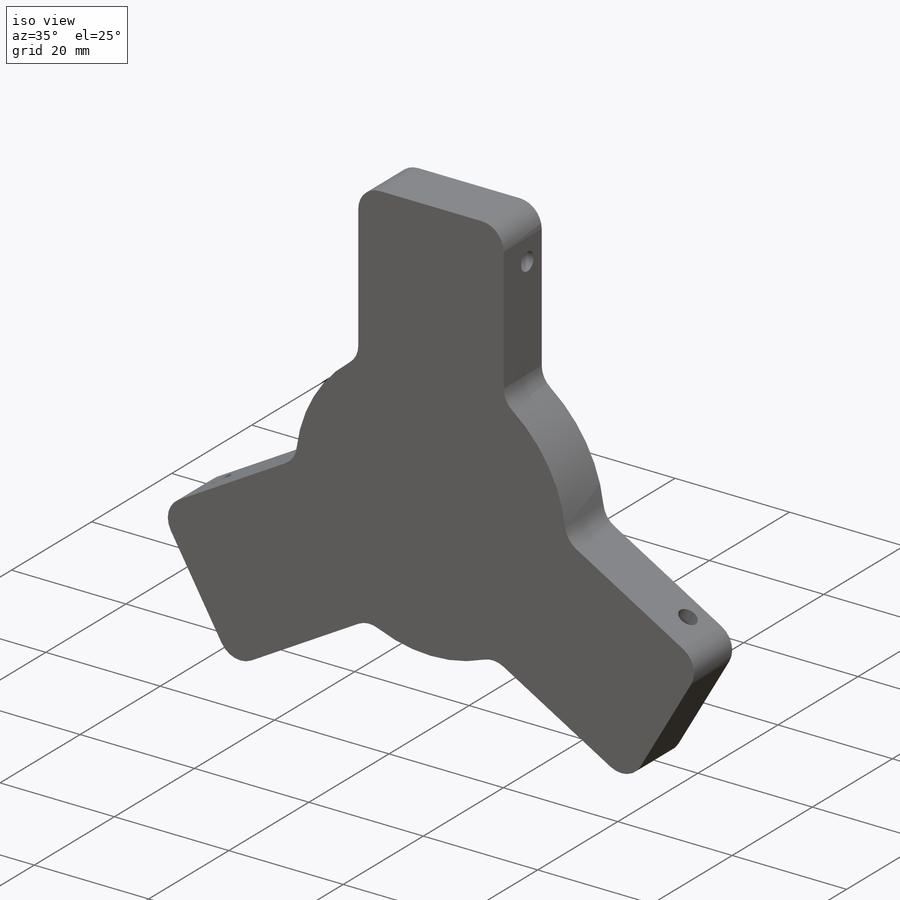
[diagram: iso view]
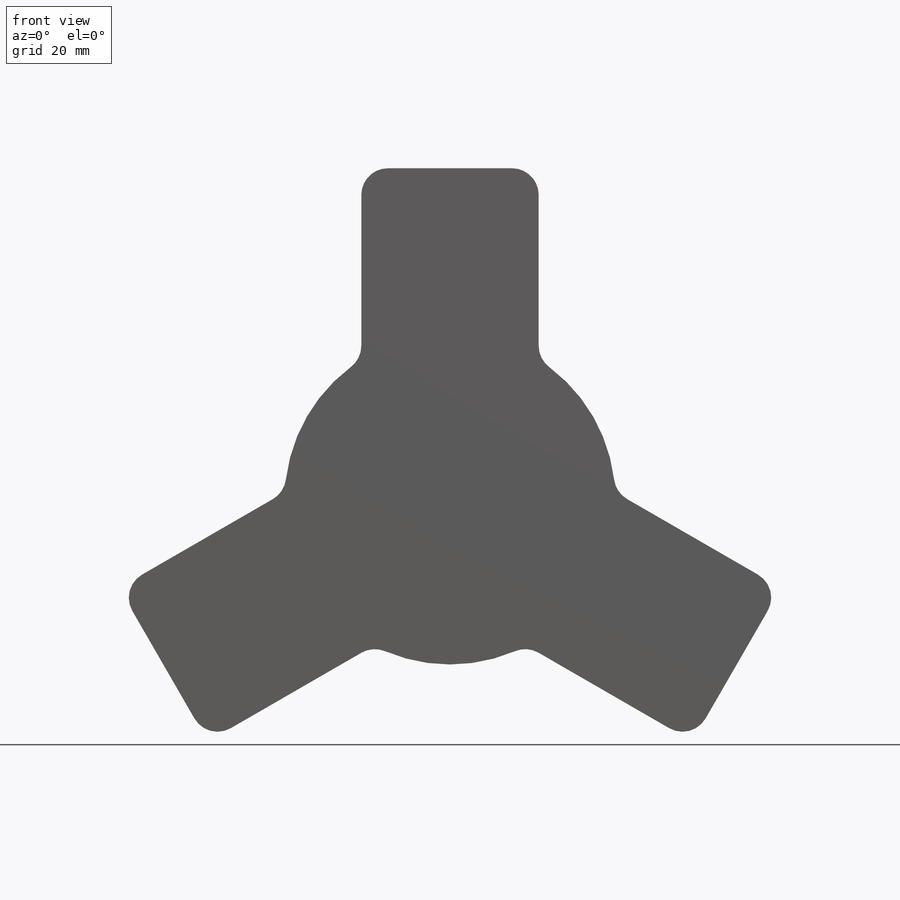
[diagram: front view]
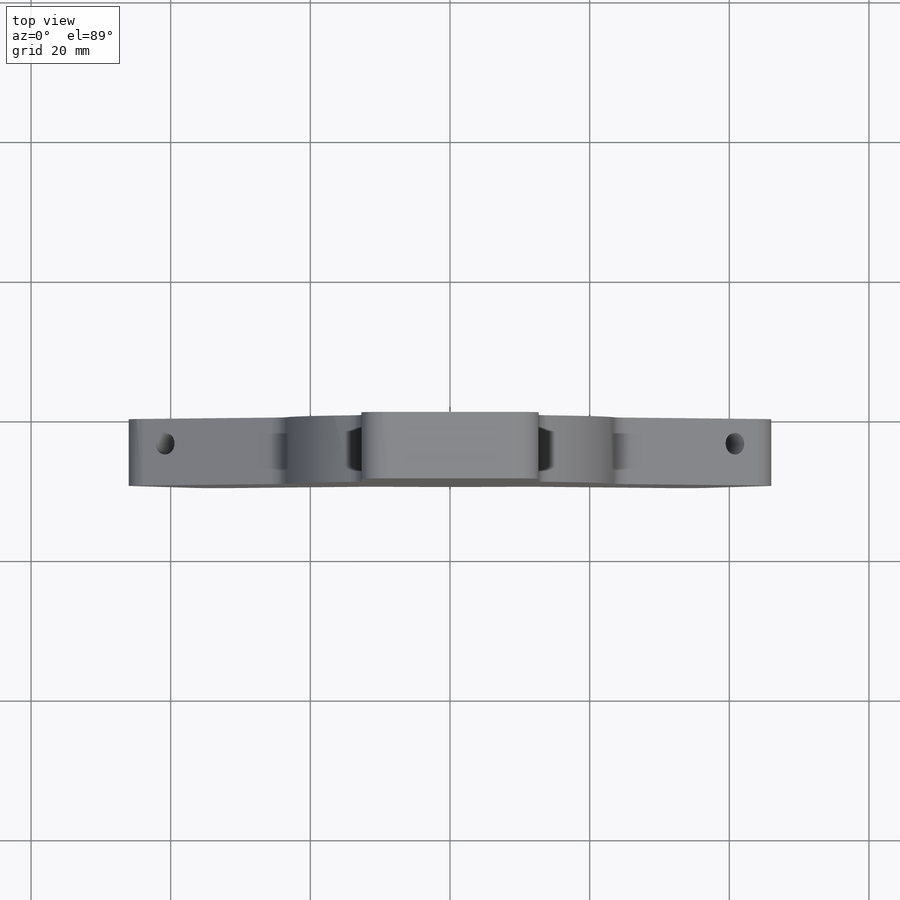
[diagram: top view]
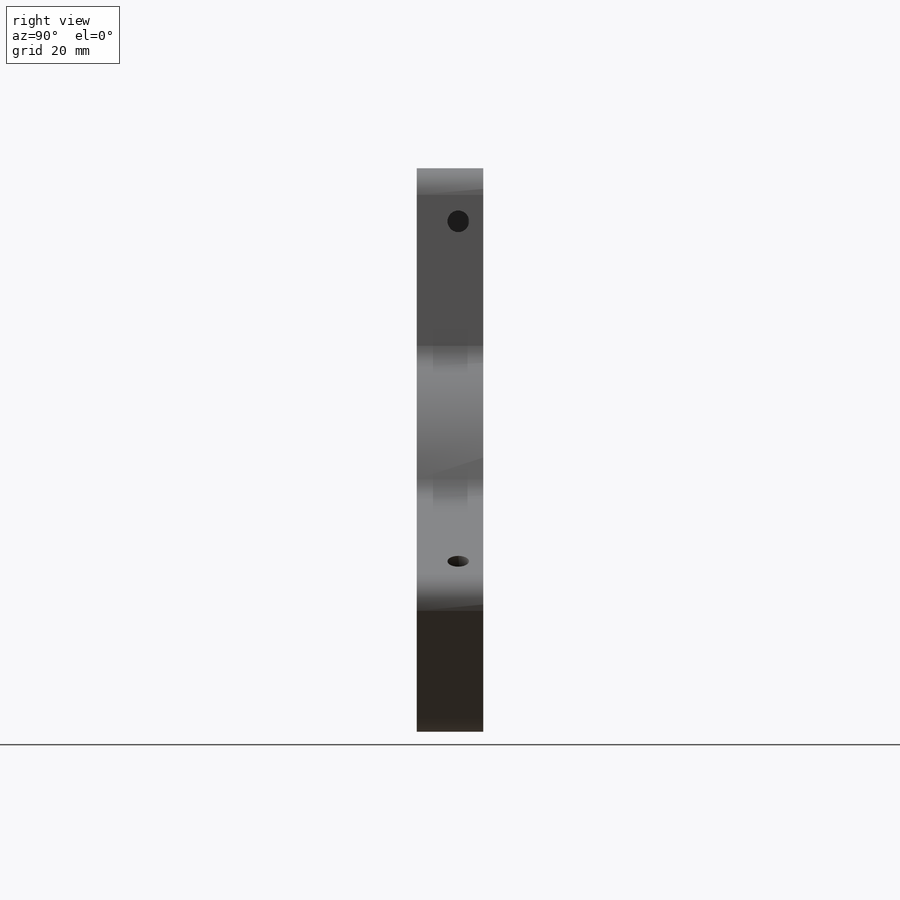
[diagram: right view]
SOLIDWORKS PART (.sldprt)
format: sldprt  version: not decoded by parser v0  size: 196,096 bytes
history: native  units: mm
features: sketch x3, cut_extrude x2, material x1, extrude x1, pattern_circular x1 (+13 scaffold rows collapsed)
feature tree (21):
  scaffold x13  (default folders/planes/origin — collapsed)
  material  "Material <not specified>"
  sketch  "Sketch1"  dims[c1.D1=~49.094712mm c1.D5=3.81mm c2.D1=47.3964mm c2.D2=25.4mm c2.D3=12.7mm c2.D4=3.0]
  extrude  "Boss-Extrude1"  Depth=9.525mm
  sketch  "Sketch3"
  cut_extrude  "Cut-Extrude2"  Depth=5.08mm
  sketch  "Sketch4"
  cut_extrude  "Cut-Extrude3"  Depth=5.08mm
  pattern_circular  "CirPattern2"  Count=3 Angle=360deg
decode coverage: 5 of 7 modeling features carry decoded parameters
note: ~ marks probable driven/reference dimensions
note: suppression state not decoded; provenance and decode notes live in map.json
